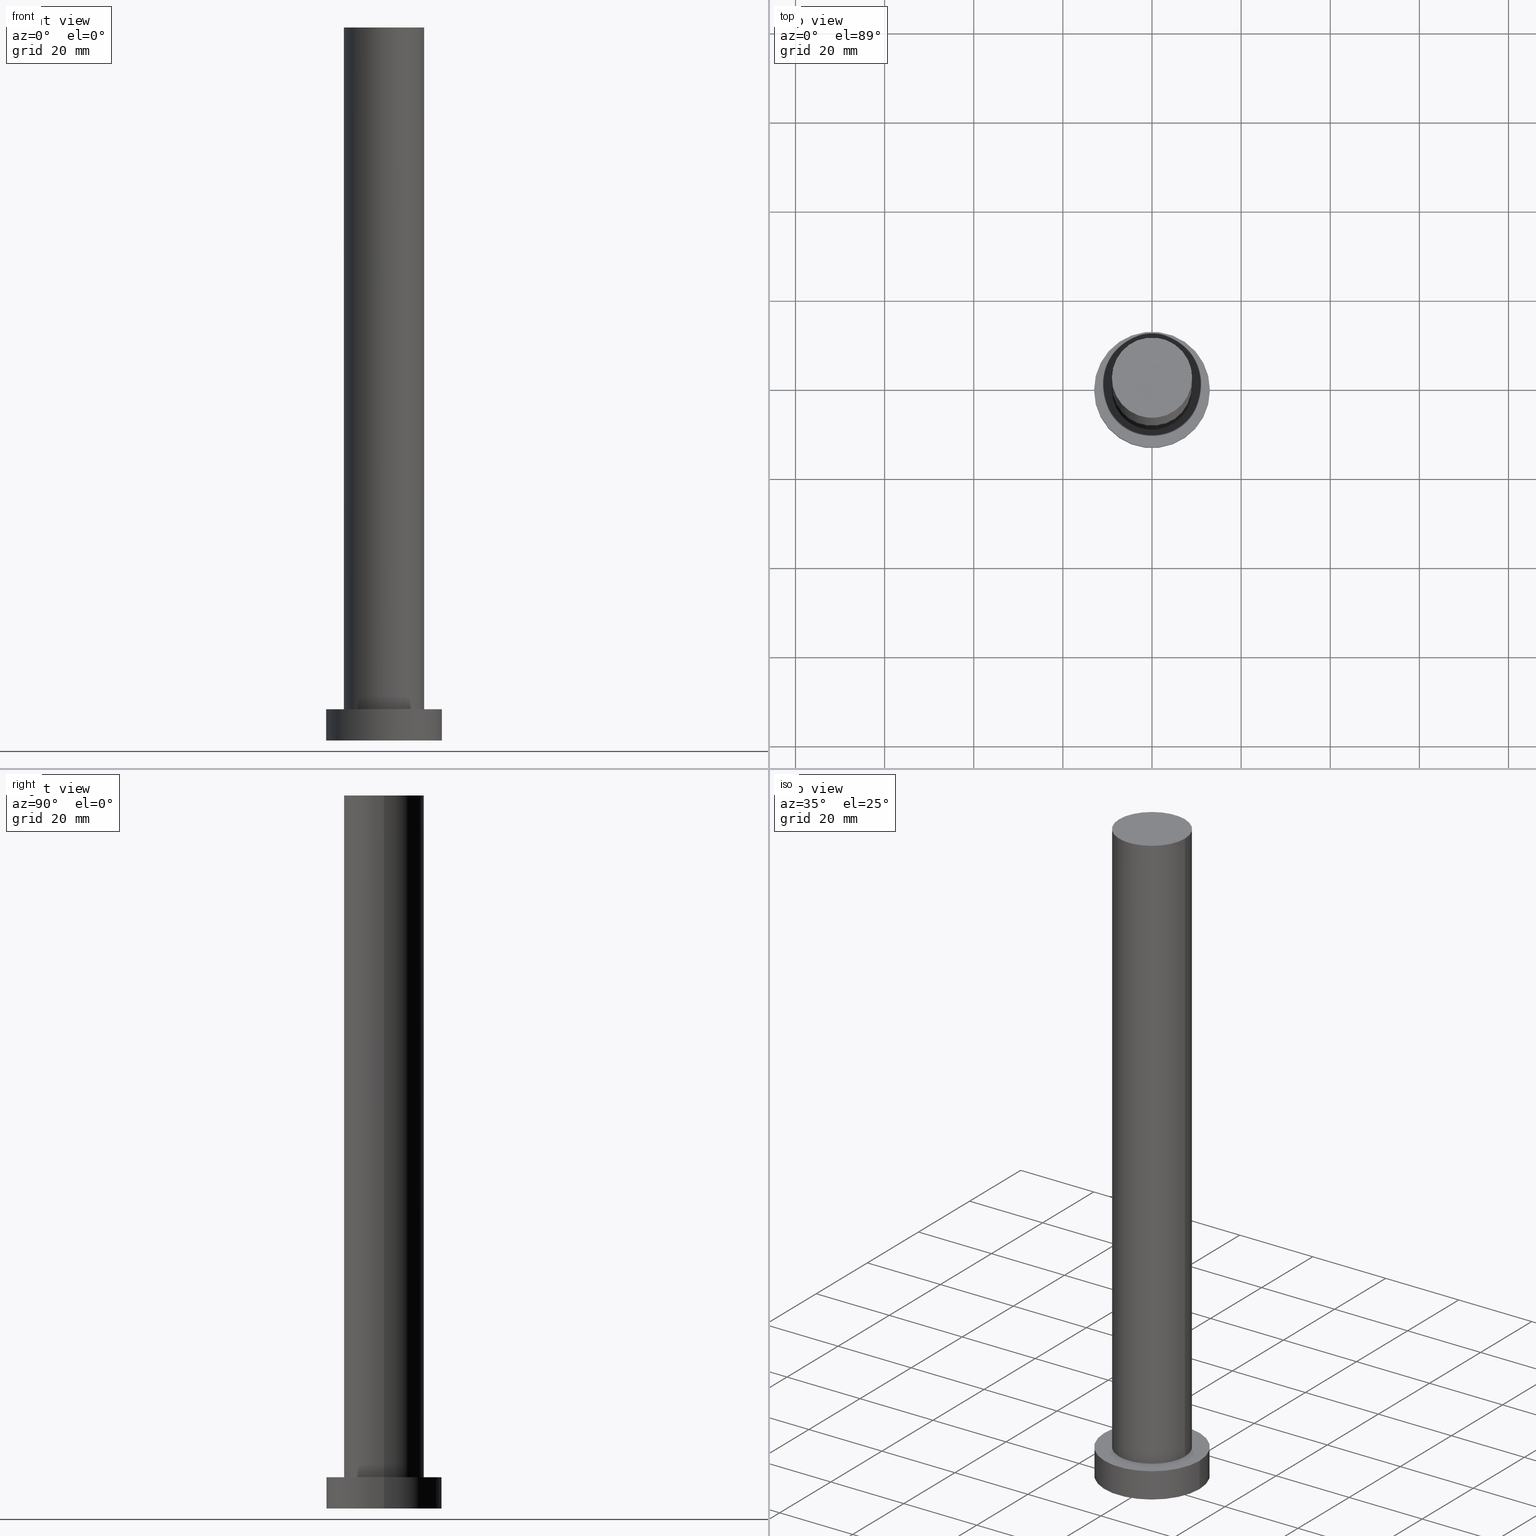
[diagram: canonical four-view strip — front | top / right | iso, engineering-drawing reading convention]
A machine part, canonical four-view strip (front | top / right | iso — engineering-drawing reading convention). The complete STEP part file that produces these views, byte-faithful:
ISO-10303-21;
HEADER;
FILE_DESCRIPTION (( 'STEP AP203' ),
    '1' );
FILE_NAME ('44fe.STEP',
    '2023-02-13T09:41:54',
    ( '' ),
    ( '' ),
    'SwSTEP 2.0',
    'SolidWorks 2019',
    '' );
FILE_SCHEMA (( 'CONFIG_CONTROL_DESIGN' ));
ENDSEC;

DATA;
#1 = PRODUCT ( '44fe', '44fe', '', ( #146 ) ) ;
#2 = DIRECTION ( 'NONE',  ( 0.000000000000000000, 0.000000000000000000, 1.000000000000000000 ) ) ;
#3 = EDGE_LOOP ( 'NONE', ( #114, #46, #164, #21 ) ) ;
#4 = DIRECTION ( 'NONE',  ( 1.000000000000000000, 0.000000000000000000, -0.000000000000000000 ) ) ;
#5 = VECTOR ( 'NONE', #210, 1000.000000000000000 ) ;
#6 = EDGE_LOOP ( 'NONE', ( #166, #129 ) ) ;
#7 = ORIENTED_EDGE ( 'NONE', *, *, #34, .T. ) ;
#8 = DIRECTION ( 'NONE',  ( -0.000000000000000000, -0.000000000000000000, -1.000000000000000000 ) ) ;
#9 = ORIENTED_EDGE ( 'NONE', *, *, #103, .T. ) ;
#10 = AXIS2_PLACEMENT_3D ( 'NONE', #92, #33, #181 ) ;
#11 = DIRECTION ( 'NONE',  ( -0.000000000000000000, -0.000000000000000000, -1.000000000000000000 ) ) ;
#12 = ORIENTED_EDGE ( 'NONE', *, *, #177, .F. ) ;
#13 = CARTESIAN_POINT ( 'NONE',  ( 0.000000000000000000, 0.000000000000000000, 7.000000000000000000 ) ) ;
#14 = CALENDAR_DATE ( 2023, 13, 2 ) ;
#15 =( NAMED_UNIT ( * ) SI_UNIT ( $, .STERADIAN. ) SOLID_ANGLE_UNIT ( ) );
#16 = AXIS2_PLACEMENT_3D ( 'NONE', #65, #119, #230 ) ;
#17 = APPROVAL_PERSON_ORGANIZATION ( #19, #165, #109 ) ;
#18 = CARTESIAN_POINT ( 'NONE',  ( -9.000000000000000000, 0.000000000000000000, 7.000000000000000000 ) ) ;
#19 = PERSON_AND_ORGANIZATION ( #218, #150 ) ;
#20 = CYLINDRICAL_SURFACE ( 'NONE', #149, 13.00000000000000178 ) ;
#21 = ORIENTED_EDGE ( 'NONE', *, *, #45, .F. ) ;
#22 = DIRECTION ( 'NONE',  ( 1.000000000000000000, 0.000000000000000000, 0.000000000000000000 ) ) ;
#23 = CARTESIAN_POINT ( 'NONE',  ( 9.000000000000000000, 1.102182119232617714E-15, 7.000000000000000000 ) ) ;
#24 = ADVANCED_FACE ( 'NONE', ( #183 ), #198, .F. ) ;
#25 = CIRCLE ( 'NONE', #175, 13.00000000000000178 ) ;
#26 = CC_DESIGN_PERSON_AND_ORGANIZATION_ASSIGNMENT ( #66, #147, ( #201 ) ) ;
#27 = AXIS2_PLACEMENT_3D ( 'NONE', #173, #197, #223 ) ;
#28 = AXIS2_PLACEMENT_3D ( 'NONE', #246, #60, #184 ) ;
#29 = FACE_OUTER_BOUND ( 'NONE', #148, .T. ) ;
#30 = ORIENTED_EDGE ( 'NONE', *, *, #234, .F. ) ;
#31 = APPROVAL_STATUS ( 'not_yet_approved' ) ;
#32 = PERSON_AND_ORGANIZATION_ROLE ( 'creator' ) ;
#33 = DIRECTION ( 'NONE',  ( 0.000000000000000000, 0.000000000000000000, 1.000000000000000000 ) ) ;
#34 = EDGE_CURVE ( 'NONE', #68, #102, #205, .T. ) ;
#35 = DATE_AND_TIME ( #108, #56 ) ;
#36 = APPLICATION_CONTEXT ( 'configuration controlled 3d designs of mechanical parts and assemblies' ) ;
#37 = DIRECTION ( 'NONE',  ( -1.000000000000000000, 0.000000000000000000, 0.000000000000000000 ) ) ;
#38 = CARTESIAN_POINT ( 'NONE',  ( 13.00000000000000178, 1.592040838891559293E-15, 7.000000000000000000 ) ) ;
#39 = CARTESIAN_POINT ( 'NONE',  ( 0.000000000000000000, 0.000000000000000000, 160.0000000000000000 ) ) ;
#40 = DIRECTION ( 'NONE',  ( 0.000000000000000000, 0.000000000000000000, 1.000000000000000000 ) ) ;
#41 = LOCAL_TIME ( 10, 41, 54.00000000000000000, #91 ) ;
#42 = DIRECTION ( 'NONE',  ( 0.000000000000000000, 0.000000000000000000, 1.000000000000000000 ) ) ;
#43 = UNCERTAINTY_MEASURE_WITH_UNIT (LENGTH_MEASURE( 1.000000000000000082E-05 ), #162, 'distance_accuracy_value', 'NONE');
#44 = DIRECTION ( 'NONE',  ( -1.000000000000000000, 0.000000000000000000, 0.000000000000000000 ) ) ;
#45 = EDGE_CURVE ( 'NONE', #180, #93, #157, .T. ) ;
#46 = ORIENTED_EDGE ( 'NONE', *, *, #163, .T. ) ;
#47 = AXIS2_PLACEMENT_3D ( 'NONE', #187, #8, #79 ) ;
#48 = CC_DESIGN_PERSON_AND_ORGANIZATION_ASSIGNMENT ( #50, #110, ( #1 ) ) ;
#49 = AXIS2_PLACEMENT_3D ( 'NONE', #72, #2, #53 ) ;
#50 = PERSON_AND_ORGANIZATION ( #218, #150 ) ;
#51 = VECTOR ( 'NONE', #126, 1000.000000000000000 ) ;
#52 = APPROVAL_ROLE ( '' ) ;
#53 = DIRECTION ( 'NONE',  ( 1.000000000000000000, 0.000000000000000000, 0.000000000000000000 ) ) ;
#54 = COORDINATED_UNIVERSAL_TIME_OFFSET ( 1, 0, .AHEAD. ) ;
#55 = ORIENTED_EDGE ( 'NONE', *, *, #45, .T. ) ;
#56 = LOCAL_TIME ( 10, 41, 54.00000000000000000, #194 ) ;
#57 = DIRECTION ( 'NONE',  ( 1.000000000000000000, 0.000000000000000000, -0.000000000000000000 ) ) ;
#58 = DIRECTION ( 'NONE',  ( 0.000000000000000000, 0.000000000000000000, 1.000000000000000000 ) ) ;
#59 = DIRECTION ( 'NONE',  ( 1.000000000000000000, 0.000000000000000000, 0.000000000000000000 ) ) ;
#60 = DIRECTION ( 'NONE',  ( 0.000000000000000000, 0.000000000000000000, 1.000000000000000000 ) ) ;
#61 = LOCAL_TIME ( 10, 41, 54.00000000000000000, #219 ) ;
#62 = EDGE_LOOP ( 'NONE', ( #215, #9 ) ) ;
#63 = AXIS2_PLACEMENT_3D ( 'NONE', #127, #106, #130 ) ;
#64 = PRODUCT_DEFINITION ( 'NEZN�M�', '', #248, #101 ) ;
#65 = CARTESIAN_POINT ( 'NONE',  ( 0.000000000000000000, 0.000000000000000000, 7.000000000000000000 ) ) ;
#66 = PERSON_AND_ORGANIZATION ( #218, #150 ) ;
#67 = PERSON_AND_ORGANIZATION ( #218, #150 ) ;
#68 = VERTEX_POINT ( 'NONE', #237 ) ;
#69 = DATE_AND_TIME ( #252, #141 ) ;
#70 = CC_DESIGN_PERSON_AND_ORGANIZATION_ASSIGNMENT ( #255, #176, ( #248 ) ) ;
#71 = CC_DESIGN_SECURITY_CLASSIFICATION ( #201, ( #248 ) ) ;
#72 = CARTESIAN_POINT ( 'NONE',  ( 0.000000000000000000, 0.000000000000000000, 160.0000000000000000 ) ) ;
#73 = APPROVAL_ROLE ( '' ) ;
#74 = CARTESIAN_POINT ( 'NONE',  ( 0.000000000000000000, 0.000000000000000000, 7.000000000000000000 ) ) ;
#75 = ORIENTED_EDGE ( 'NONE', *, *, #107, .T. ) ;
#76 = DATE_AND_TIME ( #179, #61 ) ;
#77 = ORIENTED_EDGE ( 'NONE', *, *, #158, .T. ) ;
#78 = CARTESIAN_POINT ( 'NONE',  ( 0.000000000000000000, 0.000000000000000000, 0.000000000000000000 ) ) ;
#79 = DIRECTION ( 'NONE',  ( -1.000000000000000000, 0.000000000000000000, 0.000000000000000000 ) ) ;
#80 = ADVANCED_FACE ( 'NONE', ( #239, #111 ), #195, .T. ) ;
#81 = DIRECTION ( 'NONE',  ( -1.000000000000000000, 0.000000000000000000, 0.000000000000000000 ) ) ;
#82 = DIRECTION ( 'NONE',  ( 1.000000000000000000, 0.000000000000000000, 0.000000000000000000 ) ) ;
#83 = AXIS2_PLACEMENT_3D ( 'NONE', #161, #42, #122 ) ;
#84 = APPROVAL ( #31, 'NEUR�EN�' ) ;
#85 = DATE_AND_TIME ( #14, #41 ) ;
#86 = ADVANCED_FACE ( 'NONE', ( #241 ), #253, .T. ) ;
#87 = VERTEX_POINT ( 'NONE', #38 ) ;
#88 = AXIS2_PLACEMENT_3D ( 'NONE', #90, #113, #22 ) ;
#89 = APPROVAL_DATE_TIME ( #69, #165 ) ;
#90 = CARTESIAN_POINT ( 'NONE',  ( 0.000000000000000000, 0.000000000000000000, 0.000000000000000000 ) ) ;
#91 = COORDINATED_UNIVERSAL_TIME_OFFSET ( 1, 0, .AHEAD. ) ;
#92 = CARTESIAN_POINT ( 'NONE',  ( 0.000000000000000000, 0.000000000000000000, 0.000000000000000000 ) ) ;
#93 = VERTEX_POINT ( 'NONE', #18 ) ;
#94 = CARTESIAN_POINT ( 'NONE',  ( 0.000000000000000000, 0.000000000000000000, 7.000000000000000000 ) ) ;
#95 = AXIS2_PLACEMENT_3D ( 'NONE', #94, #40, #59 ) ;
#96 = CARTESIAN_POINT ( 'NONE',  ( -9.000000000000000000, 0.000000000000000000, 160.0000000000000000 ) ) ;
#97 = FACE_OUTER_BOUND ( 'NONE', #3, .T. ) ;
#98 = CYLINDRICAL_SURFACE ( 'NONE', #47, 9.000000000000000000 ) ;
#99 = CIRCLE ( 'NONE', #49, 9.000000000000000000 ) ;
#100 = APPROVAL_PERSON_ORGANIZATION ( #216, #121, #52 ) ;
#101 = DESIGN_CONTEXT ( 'detailed design', #120, 'design' ) ;
#102 = VERTEX_POINT ( 'NONE', #199 ) ;
#103 = EDGE_CURVE ( 'NONE', #217, #180, #99, .T. ) ;
#104 = CYLINDRICAL_SURFACE ( 'NONE', #156, 13.00000000000000178 ) ;
#105 = APPROVAL_PERSON_ORGANIZATION ( #67, #84, #73 ) ;
#106 = DIRECTION ( 'NONE',  ( 0.000000000000000000, 0.000000000000000000, 1.000000000000000000 ) ) ;
#107 = EDGE_CURVE ( 'NONE', #102, #68, #143, .T. ) ;
#108 = CALENDAR_DATE ( 2023, 13, 2 ) ;
#109 = APPROVAL_ROLE ( '' ) ;
#110 = PERSON_AND_ORGANIZATION_ROLE ( 'design_owner' ) ;
#111 = FACE_OUTER_BOUND ( 'NONE', #6, .T. ) ;
#112 = ORIENTED_EDGE ( 'NONE', *, *, #209, .F. ) ;
#113 = DIRECTION ( 'NONE',  ( 0.000000000000000000, 0.000000000000000000, 1.000000000000000000 ) ) ;
#114 = ORIENTED_EDGE ( 'NONE', *, *, #103, .F. ) ;
#115 = CLOSED_SHELL ( 'NONE', ( #243, #125, #186, #80, #24, #245, #86 ) ) ;
#116 = DIRECTION ( 'NONE',  ( -0.000000000000000000, -0.000000000000000000, -1.000000000000000000 ) ) ;
#117 = MANIFOLD_SOLID_BREP ( 'P�idat vysunut�m3', #115 ) ;
#118 = CC_DESIGN_PERSON_AND_ORGANIZATION_ASSIGNMENT ( #212, #151, ( #248 ) ) ;
#119 = DIRECTION ( 'NONE',  ( 0.000000000000000000, 0.000000000000000000, 1.000000000000000000 ) ) ;
#120 = APPLICATION_CONTEXT ( 'configuration controlled 3d designs of mechanical parts and assemblies' ) ;
#121 = APPROVAL ( #132, 'NEUR�EN�' ) ;
#122 = DIRECTION ( 'NONE',  ( 1.000000000000000000, 0.000000000000000000, 0.000000000000000000 ) ) ;
#123 = AXIS2_PLACEMENT_3D ( 'NONE', #78, #133, #4 ) ;
#124 = ORIENTED_EDGE ( 'NONE', *, *, #34, .F. ) ;
#125 = ADVANCED_FACE ( 'NONE', ( #178 ), #20, .T. ) ;
#126 = DIRECTION ( 'NONE',  ( -0.000000000000000000, -0.000000000000000000, -1.000000000000000000 ) ) ;
#127 = CARTESIAN_POINT ( 'NONE',  ( 0.000000000000000000, 0.000000000000000000, 0.000000000000000000 ) ) ;
#128 = VERTEX_POINT ( 'NONE', #135 ) ;
#129 = ORIENTED_EDGE ( 'NONE', *, *, #229, .T. ) ;
#130 = DIRECTION ( 'NONE',  ( 1.000000000000000000, 0.000000000000000000, 0.000000000000000000 ) ) ;
#131 = CARTESIAN_POINT ( 'NONE',  ( 9.000000000000000000, 1.102182119232617714E-15, 160.0000000000000000 ) ) ;
#132 = APPROVAL_STATUS ( 'not_yet_approved' ) ;
#133 = DIRECTION ( 'NONE',  ( 0.000000000000000000, 0.000000000000000000, 1.000000000000000000 ) ) ;
#134 = VECTOR ( 'NONE', #222, 1000.000000000000000 ) ;
#135 = CARTESIAN_POINT ( 'NONE',  ( -13.00000000000000178, 0.000000000000000000, 7.000000000000000000 ) ) ;
#136 = CIRCLE ( 'NONE', #95, 9.000000000000000000 ) ;
#137 = CARTESIAN_POINT ( 'NONE',  ( 0.000000000000000000, 0.000000000000000000, 160.0000000000000000 ) ) ;
#138 = VERTEX_POINT ( 'NONE', #23 ) ;
#139 =( NAMED_UNIT ( * ) PLANE_ANGLE_UNIT ( ) SI_UNIT ( $, .RADIAN. ) );
#140 = EDGE_CURVE ( 'NONE', #128, #68, #159, .T. ) ;
#141 = LOCAL_TIME ( 10, 41, 54.00000000000000000, #54 ) ;
#142 = ORIENTED_EDGE ( 'NONE', *, *, #140, .T. ) ;
#143 = CIRCLE ( 'NONE', #88, 13.00000000000000178 ) ;
#144 = DIRECTION ( 'NONE',  ( -0.000000000000000000, -0.000000000000000000, -1.000000000000000000 ) ) ;
#145 = CC_DESIGN_DATE_AND_TIME_ASSIGNMENT ( #35, #196, ( #64 ) ) ;
#146 = MECHANICAL_CONTEXT ( 'NONE', #36, 'mechanical' ) ;
#147 = PERSON_AND_ORGANIZATION_ROLE ( 'classification_officer' ) ;
#148 = EDGE_LOOP ( 'NONE', ( #30, #112, #142, #7 ) ) ;
#149 = AXIS2_PLACEMENT_3D ( 'NONE', #74, #220, #37 ) ;
#150 = ORGANIZATION ( 'NEUR�EN�', 'NEUR�EN�', '' ) ;
#151 = PERSON_AND_ORGANIZATION_ROLE ( 'creator' ) ;
#152 = APPROVAL_DATE_TIME ( #236, #121 ) ;
#153 = ORIENTED_EDGE ( 'NONE', *, *, #163, .F. ) ;
#154 = APPROVAL_DATE_TIME ( #76, #84 ) ;
#155 = CC_DESIGN_DATE_AND_TIME_ASSIGNMENT ( #85, #171, ( #201 ) ) ;
#156 = AXIS2_PLACEMENT_3D ( 'NONE', #189, #144, #44 ) ;
#157 = LINE ( 'NONE', #96, #247 ) ;
#158 = EDGE_CURVE ( 'NONE', #93, #138, #136, .T. ) ;
#159 = LINE ( 'NONE', #242, #134 ) ;
#160 = FACE_OUTER_BOUND ( 'NONE', #226, .T. ) ;
#161 = CARTESIAN_POINT ( 'NONE',  ( 0.000000000000000000, 0.000000000000000000, 7.000000000000000000 ) ) ;
#162 =( LENGTH_UNIT ( ) NAMED_UNIT ( * ) SI_UNIT ( .MILLI., .METRE. ) );
#163 = EDGE_CURVE ( 'NONE', #217, #138, #224, .T. ) ;
#164 = ORIENTED_EDGE ( 'NONE', *, *, #203, .T. ) ;
#165 = APPROVAL ( #172, 'NEUR�EN�' ) ;
#166 = ORIENTED_EDGE ( 'NONE', *, *, #209, .T. ) ;
#167 = ADVANCED_BREP_SHAPE_REPRESENTATION ( '44fe', ( #117, #63 ), #227 ) ;
#168 = ORIENTED_EDGE ( 'NONE', *, *, #203, .F. ) ;
#169 = CARTESIAN_POINT ( 'NONE',  ( 9.000000000000000000, 1.102182119232617714E-15, 160.0000000000000000 ) ) ;
#170 = CIRCLE ( 'NONE', #83, 9.000000000000000000 ) ;
#171 = DATE_TIME_ROLE ( 'classification_date' ) ;
#172 = APPROVAL_STATUS ( 'not_yet_approved' ) ;
#173 = CARTESIAN_POINT ( 'NONE',  ( 0.000000000000000000, 0.000000000000000000, 7.000000000000000000 ) ) ;
#174 = CIRCLE ( 'NONE', #16, 13.00000000000000178 ) ;
#175 = AXIS2_PLACEMENT_3D ( 'NONE', #13, #225, #82 ) ;
#176 = PERSON_AND_ORGANIZATION_ROLE ( 'design_supplier' ) ;
#177 = EDGE_CURVE ( 'NONE', #180, #217, #200, .T. ) ;
#178 = FACE_OUTER_BOUND ( 'NONE', #182, .T. ) ;
#179 = CALENDAR_DATE ( 2023, 13, 2 ) ;
#180 = VERTEX_POINT ( 'NONE', #208 ) ;
#181 = DIRECTION ( 'NONE',  ( 1.000000000000000000, 0.000000000000000000, 0.000000000000000000 ) ) ;
#182 = EDGE_LOOP ( 'NONE', ( #211, #228, #75, #231 ) ) ;
#183 = FACE_OUTER_BOUND ( 'NONE', #244, .T. ) ;
#184 = DIRECTION ( 'NONE',  ( 1.000000000000000000, 0.000000000000000000, 0.000000000000000000 ) ) ;
#185 = CARTESIAN_POINT ( 'NONE',  ( 13.00000000000000178, 1.592040838891559293E-15, 7.000000000000000000 ) ) ;
#186 = ADVANCED_FACE ( 'NONE', ( #29 ), #104, .T. ) ;
#187 = CARTESIAN_POINT ( 'NONE',  ( 0.000000000000000000, 0.000000000000000000, 160.0000000000000000 ) ) ;
#188 = LOCAL_TIME ( 10, 41, 54.00000000000000000, #250 ) ;
#189 = CARTESIAN_POINT ( 'NONE',  ( 0.000000000000000000, 0.000000000000000000, 7.000000000000000000 ) ) ;
#190 = PRODUCT_DEFINITION_SHAPE ( 'NONE', 'NONE',  #64 ) ;
#191 = PERSON_AND_ORGANIZATION ( #218, #150 ) ;
#192 = APPLICATION_PROTOCOL_DEFINITION ( 'international standard', 'config_control_design', 1994, #120 ) ;
#193 = EDGE_LOOP ( 'NONE', ( #221, #168 ) ) ;
#194 = COORDINATED_UNIVERSAL_TIME_OFFSET ( 1, 0, .AHEAD. ) ;
#195 = PLANE ( 'NONE',  #27 ) ;
#196 = DATE_TIME_ROLE ( 'creation_date' ) ;
#197 = DIRECTION ( 'NONE',  ( 0.000000000000000000, 0.000000000000000000, 1.000000000000000000 ) ) ;
#198 = PLANE ( 'NONE',  #123 ) ;
#199 = CARTESIAN_POINT ( 'NONE',  ( 13.00000000000000178, 1.592040838891559293E-15, 0.000000000000000000 ) ) ;
#200 = CIRCLE ( 'NONE', #28, 9.000000000000000000 ) ;
#201 = SECURITY_CLASSIFICATION ( '', '', #249 ) ;
#202 = CYLINDRICAL_SURFACE ( 'NONE', #206, 9.000000000000000000 ) ;
#203 = EDGE_CURVE ( 'NONE', #138, #93, #170, .T. ) ;
#204 = LINE ( 'NONE', #185, #5 ) ;
#205 = CIRCLE ( 'NONE', #10, 13.00000000000000178 ) ;
#206 = AXIS2_PLACEMENT_3D ( 'NONE', #137, #11, #81 ) ;
#207 = CC_DESIGN_APPROVAL ( #84, ( #201 ) ) ;
#208 = CARTESIAN_POINT ( 'NONE',  ( -9.000000000000000000, 0.000000000000000000, 160.0000000000000000 ) ) ;
#209 = EDGE_CURVE ( 'NONE', #128, #87, #25, .T. ) ;
#210 = DIRECTION ( 'NONE',  ( -0.000000000000000000, -0.000000000000000000, -1.000000000000000000 ) ) ;
#211 = ORIENTED_EDGE ( 'NONE', *, *, #229, .F. ) ;
#212 = PERSON_AND_ORGANIZATION ( #218, #150 ) ;
#213 = AXIS2_PLACEMENT_3D ( 'NONE', #39, #58, #57 ) ;
#214 = CC_DESIGN_PERSON_AND_ORGANIZATION_ASSIGNMENT ( #191, #32, ( #64 ) ) ;
#215 = ORIENTED_EDGE ( 'NONE', *, *, #177, .T. ) ;
#216 = PERSON_AND_ORGANIZATION ( #218, #150 ) ;
#217 = VERTEX_POINT ( 'NONE', #169 ) ;
#218 = PERSON ( 'NEUR�EN�', 'NEUR�EN�', 'NEUR�EN�', ('NEUR�EN�'), ('NEUR�EN�'), ('NEUR�EN�') ) ;
#219 = COORDINATED_UNIVERSAL_TIME_OFFSET ( 1, 0, .AHEAD. ) ;
#220 = DIRECTION ( 'NONE',  ( -0.000000000000000000, -0.000000000000000000, -1.000000000000000000 ) ) ;
#221 = ORIENTED_EDGE ( 'NONE', *, *, #158, .F. ) ;
#222 = DIRECTION ( 'NONE',  ( -0.000000000000000000, -0.000000000000000000, -1.000000000000000000 ) ) ;
#223 = DIRECTION ( 'NONE',  ( 1.000000000000000000, 0.000000000000000000, -0.000000000000000000 ) ) ;
#224 = LINE ( 'NONE', #131, #51 ) ;
#225 = DIRECTION ( 'NONE',  ( 0.000000000000000000, 0.000000000000000000, 1.000000000000000000 ) ) ;
#226 = EDGE_LOOP ( 'NONE', ( #153, #12, #55, #77 ) ) ;
#227 =( GEOMETRIC_REPRESENTATION_CONTEXT ( 3 ) GLOBAL_UNCERTAINTY_ASSIGNED_CONTEXT ( ( #43 ) ) GLOBAL_UNIT_ASSIGNED_CONTEXT ( ( #162, #139, #15 ) ) REPRESENTATION_CONTEXT ( 'NONE', 'WORKASPACE' ) );
#228 = ORIENTED_EDGE ( 'NONE', *, *, #234, .T. ) ;
#229 = EDGE_CURVE ( 'NONE', #87, #128, #174, .T. ) ;
#230 = DIRECTION ( 'NONE',  ( 1.000000000000000000, 0.000000000000000000, 0.000000000000000000 ) ) ;
#231 = ORIENTED_EDGE ( 'NONE', *, *, #140, .F. ) ;
#232 = APPLICATION_PROTOCOL_DEFINITION ( 'international standard', 'config_control_design', 1994, #36 ) ;
#233 = CALENDAR_DATE ( 2023, 13, 2 ) ;
#234 = EDGE_CURVE ( 'NONE', #87, #102, #204, .T. ) ;
#235 = PRODUCT_RELATED_PRODUCT_CATEGORY ( 'detail', '', ( #1 ) ) ;
#236 = DATE_AND_TIME ( #233, #188 ) ;
#237 = CARTESIAN_POINT ( 'NONE',  ( -13.00000000000000178, 0.000000000000000000, 0.000000000000000000 ) ) ;
#238 = SHAPE_DEFINITION_REPRESENTATION ( #190, #167 ) ;
#239 = FACE_BOUND ( 'NONE', #193, .T. ) ;
#240 = CC_DESIGN_APPROVAL ( #121, ( #64 ) ) ;
#241 = FACE_OUTER_BOUND ( 'NONE', #62, .T. ) ;
#242 = CARTESIAN_POINT ( 'NONE',  ( -13.00000000000000178, 0.000000000000000000, 7.000000000000000000 ) ) ;
#243 = ADVANCED_FACE ( 'NONE', ( #97 ), #98, .T. ) ;
#244 = EDGE_LOOP ( 'NONE', ( #124, #251 ) ) ;
#245 = ADVANCED_FACE ( 'NONE', ( #160 ), #202, .T. ) ;
#246 = CARTESIAN_POINT ( 'NONE',  ( 0.000000000000000000, 0.000000000000000000, 160.0000000000000000 ) ) ;
#247 = VECTOR ( 'NONE', #116, 1000.000000000000000 ) ;
#248 = PRODUCT_DEFINITION_FORMATION_WITH_SPECIFIED_SOURCE ( 'LIBOVOLN�', '', #1, .NOT_KNOWN. ) ;
#249 = SECURITY_CLASSIFICATION_LEVEL ( 'unclassified' ) ;
#250 = COORDINATED_UNIVERSAL_TIME_OFFSET ( 1, 0, .AHEAD. ) ;
#251 = ORIENTED_EDGE ( 'NONE', *, *, #107, .F. ) ;
#252 = CALENDAR_DATE ( 2023, 13, 2 ) ;
#253 = PLANE ( 'NONE',  #213 ) ;
#254 = CC_DESIGN_APPROVAL ( #165, ( #248 ) ) ;
#255 = PERSON_AND_ORGANIZATION ( #218, #150 ) ;
ENDSEC;
END-ISO-10303-21;
